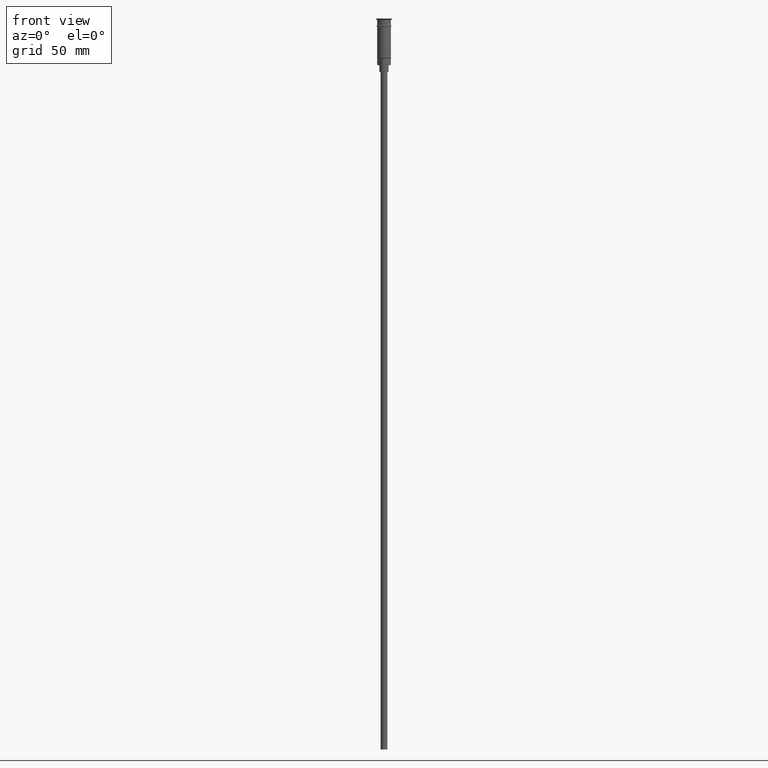
[diagram: clean part render]
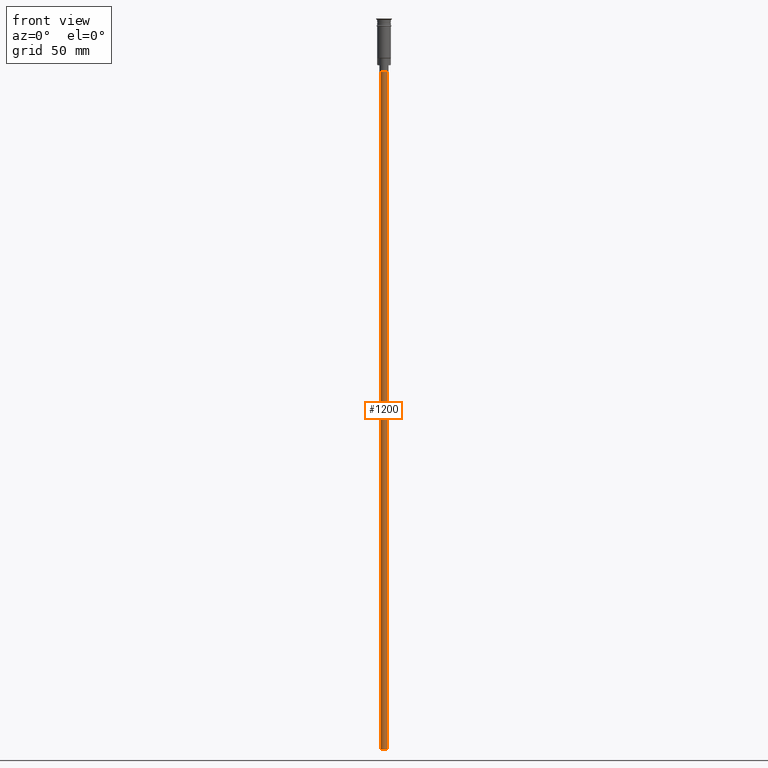
[diagram: same view with one face highlighted and labeled with its STEP entity id]
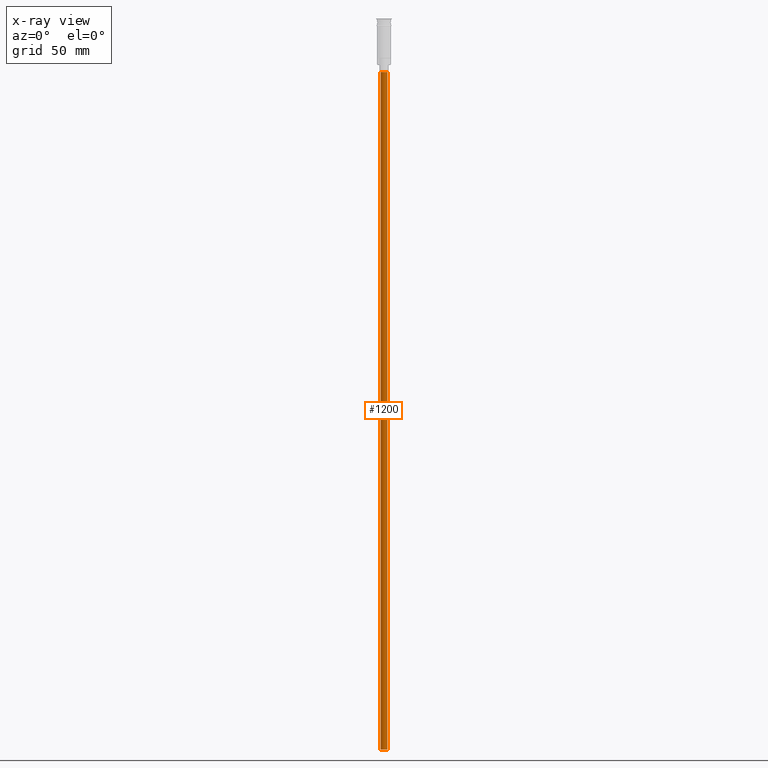
[diagram: x-ray of the same camera — body ghosted, the highlighted face saturated]
A machine part, front view. The second image highlights one B-rep face of the part: STEP entity #1200.
The next image is the same camera in x-ray: the body ghosted, the highlighted face saturated — about 0% of this face is hidden behind the body in this view.
In plain terms, the highlighted cylindrical surface (edge-blend (fillet) strip) has radius 1.5 mm, axis along (-0, -0, 1).
Its self-contained STEP definition (entity closure, byte-faithful):
#24 = ORIENTED_EDGE ( 'NONE', *, *, #405, .T. ) ;
#27 = AXIS2_PLACEMENT_3D ( 'NONE', #506, #237, #488 ) ;
#40 = ORIENTED_EDGE ( 'NONE', *, *, #640, .T. ) ;
#43 = LINE ( 'NONE', #1044, #1013 ) ;
#84 = DIRECTION ( 'NONE',  ( -0.000000000000000000, -0.000000000000000000, 1.000000000000000000 ) ) ;
#86 = EDGE_CURVE ( 'NONE', #817, #1165, #1478, .T. ) ;
#213 = AXIS2_PLACEMENT_3D ( 'NONE', #1091, #1592, #962 ) ;
#237 = DIRECTION ( 'NONE',  ( 0.000000000000000000, 0.000000000000000000, -1.000000000000000000 ) ) ;
#257 = ORIENTED_EDGE ( 'NONE', *, *, #86, .F. ) ;
#270 = FACE_OUTER_BOUND ( 'NONE', #1568, .T. ) ;
#391 = CIRCLE ( 'NONE', #27, 1.500000000000000222 ) ;
#405 = EDGE_CURVE ( 'NONE', #817, #491, #43, .T. ) ;
#439 = CARTESIAN_POINT ( 'NONE',  ( -1.500000000000000222, 1.836970198721030181E-16, -320.5000000000000000 ) ) ;
#444 = CARTESIAN_POINT ( 'NONE',  ( 1.500000000000000222, 0.000000000000000000, -23.50000000000000000 ) ) ;
#464 = CARTESIAN_POINT ( 'NONE',  ( 0.000000000000000000, 0.000000000000000000, -320.5000000000000000 ) ) ;
#488 = DIRECTION ( 'NONE',  ( -1.000000000000000000, 0.000000000000000000, 0.000000000000000000 ) ) ;
#491 = VERTEX_POINT ( 'NONE', #444 ) ;
#506 = CARTESIAN_POINT ( 'NONE',  ( 0.000000000000000000, 0.000000000000000000, -23.50000000000000000 ) ) ;
#563 = ORIENTED_EDGE ( 'NONE', *, *, #920, .F. ) ;
#565 = CARTESIAN_POINT ( 'NONE',  ( -1.500000000000000222, 1.836970198721030181E-16, -23.50000000000000000 ) ) ;
#640 = EDGE_CURVE ( 'NONE', #491, #951, #391, .T. ) ;
#817 = VERTEX_POINT ( 'NONE', #1032 ) ;
#920 = EDGE_CURVE ( 'NONE', #1165, #951, #1447, .T. ) ;
#951 = VERTEX_POINT ( 'NONE', #565 ) ;
#962 = DIRECTION ( 'NONE',  ( 1.000000000000000000, 0.000000000000000000, 0.000000000000000000 ) ) ;
#970 = DIRECTION ( 'NONE',  ( 0.000000000000000000, 0.000000000000000000, -1.000000000000000000 ) ) ;
#1013 = VECTOR ( 'NONE', #1033, 1000.000000000000000 ) ;
#1032 = CARTESIAN_POINT ( 'NONE',  ( 1.500000000000000222, 0.000000000000000000, -320.5000000000000000 ) ) ;
#1033 = DIRECTION ( 'NONE',  ( -0.000000000000000000, -0.000000000000000000, 1.000000000000000000 ) ) ;
#1044 = CARTESIAN_POINT ( 'NONE',  ( 1.500000000000000222, 0.000000000000000000, -320.5000000000000000 ) ) ;
#1060 = AXIS2_PLACEMENT_3D ( 'NONE', #464, #970, #1336 ) ;
#1091 = CARTESIAN_POINT ( 'NONE',  ( 0.000000000000000000, 0.000000000000000000, -320.5000000000000000 ) ) ;
#1165 = VERTEX_POINT ( 'NONE', #1365 ) ;
#1200 = ADVANCED_FACE ( 'NONE', ( #270 ), #1566, .T. ) ;
#1336 = DIRECTION ( 'NONE',  ( -1.000000000000000000, 0.000000000000000000, 0.000000000000000000 ) ) ;
#1365 = CARTESIAN_POINT ( 'NONE',  ( -1.500000000000000222, 1.836970198721030181E-16, -320.5000000000000000 ) ) ;
#1447 = LINE ( 'NONE', #439, #1508 ) ;
#1478 = CIRCLE ( 'NONE', #1060, 1.500000000000000222 ) ;
#1508 = VECTOR ( 'NONE', #84, 1000.000000000000000 ) ;
#1566 = CYLINDRICAL_SURFACE ( 'NONE', #213, 1.500000000000000222 ) ;
#1568 = EDGE_LOOP ( 'NONE', ( #563, #257, #24, #40 ) ) ;
#1592 = DIRECTION ( 'NONE',  ( -0.000000000000000000, -0.000000000000000000, 1.000000000000000000 ) ) ;